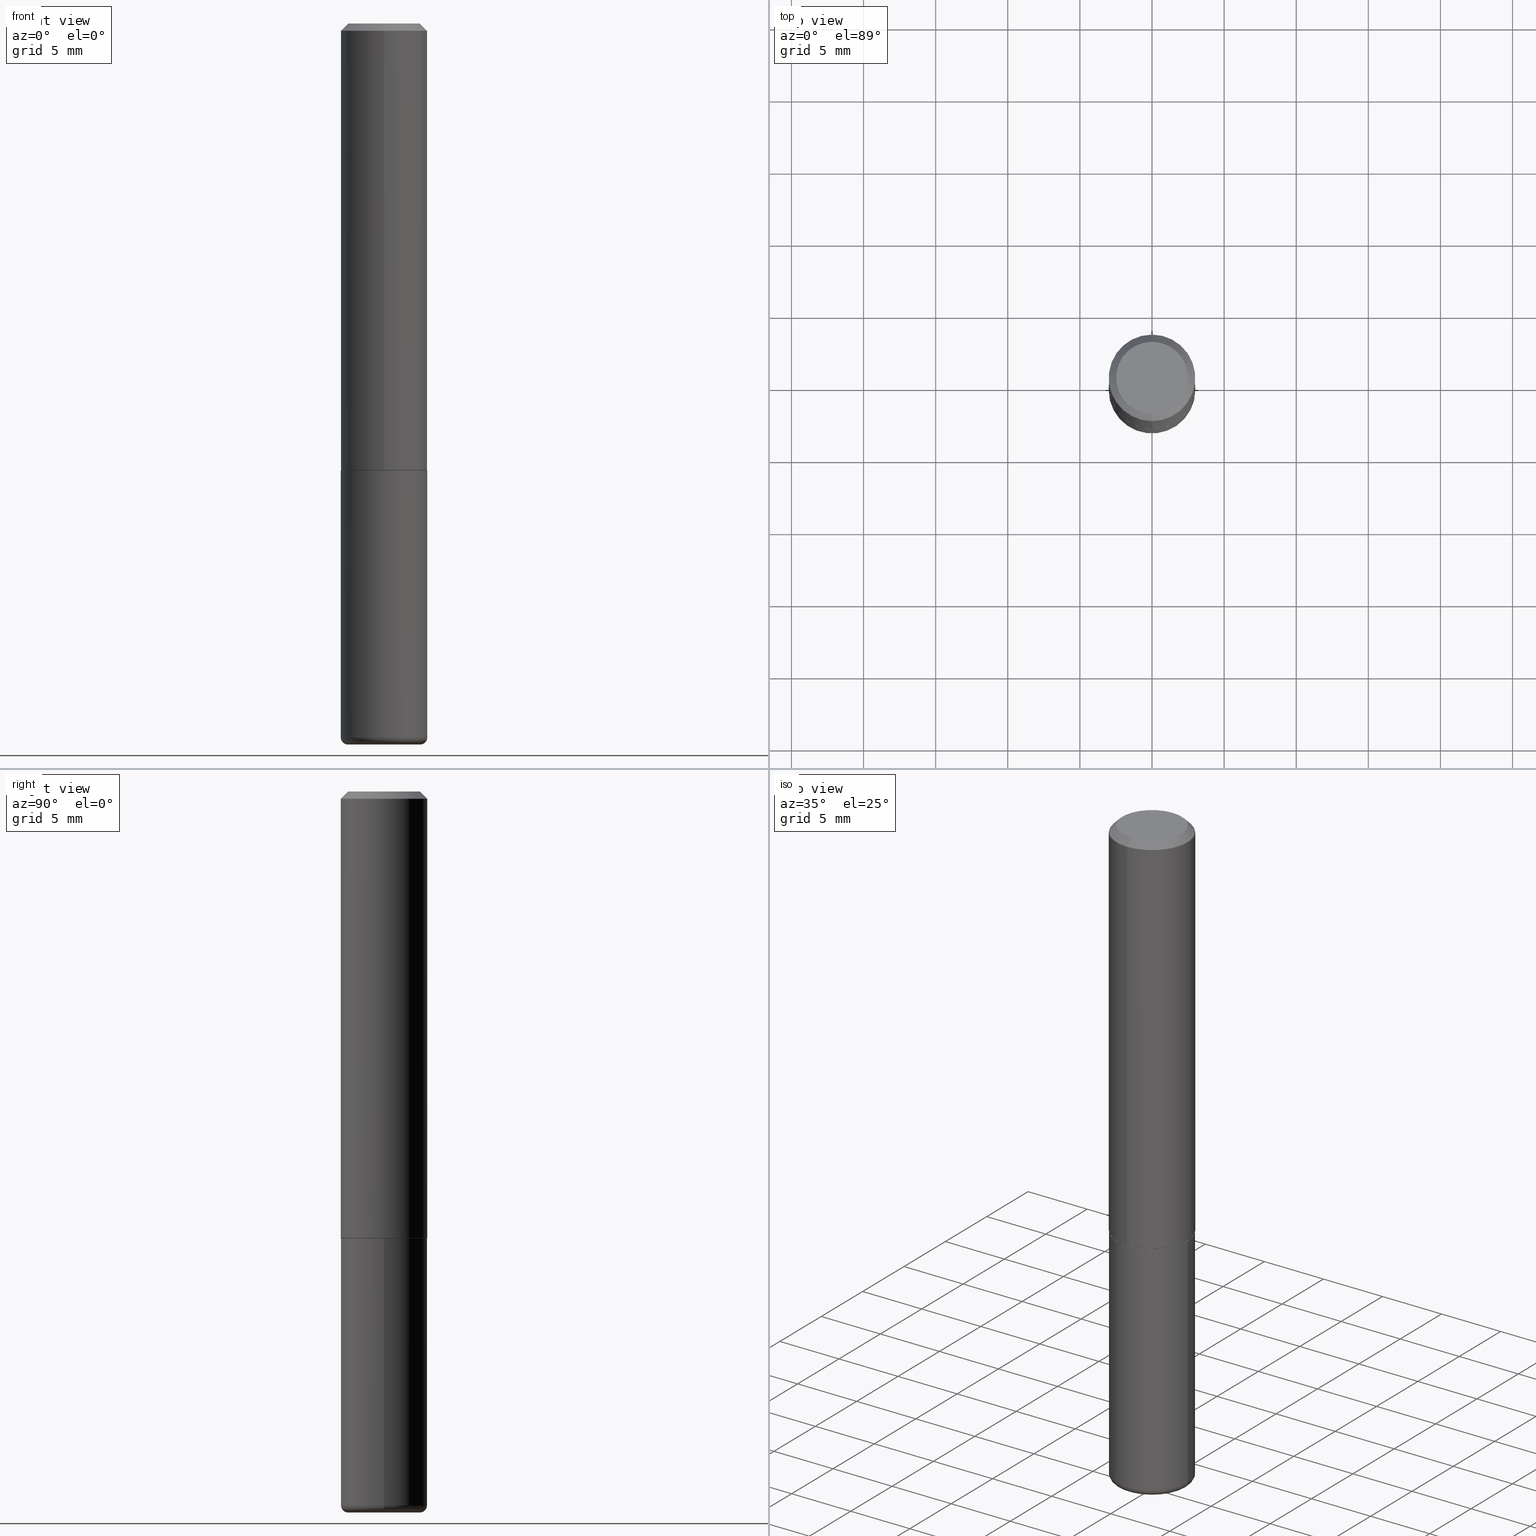
[diagram: canonical four-view strip — front | top / right | iso, engineering-drawing reading convention]
A machine part, canonical four-view strip (front | top / right | iso — engineering-drawing reading convention). The complete STEP part file that produces these views, byte-faithful:
ISO-10303-21;
HEADER;
FILE_DESCRIPTION (( 'STEP AP203' ),
    '1' );
FILE_NAME ('40010.STEP',
    '2024-03-03T20:07:41',
    ( '' ),
    ( '' ),
    'SwSTEP 2.0',
    'SolidWorks 2023',
    '' );
FILE_SCHEMA (( 'CONFIG_CONTROL_DESIGN' ));
ENDSEC;

DATA;
#1 = VERTEX_POINT ( 'NONE', #366 ) ;
#2 = DIRECTION ( 'NONE',  ( 2.444963449753266719E-29, -3.492205038016684672E-15, -1.000000000000000000 ) ) ;
#3 = APPROVAL ( #224, 'UNSPECIFIED' ) ;
#4 = DIRECTION ( 'NONE',  ( -2.444963449753266719E-29, 3.492205038016684672E-15, 1.000000000000000000 ) ) ;
#5 = DIRECTION ( 'NONE',  ( -4.937700262165474954E-15, -0.7071067811866779129, 0.7071067811864171215 ) ) ;
#6 = AXIS2_PLACEMENT_3D ( 'NONE', #348, #55, #346 ) ;
#7 = ORIENTED_EDGE ( 'NONE', *, *, #176, .T. ) ;
#8 = EDGE_CURVE ( 'NONE', #236, #1, #183, .T. ) ;
#9 = VERTEX_POINT ( 'NONE', #41 ) ;
#10 = AXIS2_PLACEMENT_3D ( 'NONE', #356, #207, #36 ) ;
#11 = DIRECTION ( 'NONE',  ( -2.444963449753266719E-29, 3.492205038016685066E-15, 1.000000000000000000 ) ) ;
#12 = CARTESIAN_POINT ( 'NONE',  ( 0.000000000000000000, 0.000000000000000000, 0.000000000000000000 ) ) ;
#13 = DIRECTION ( 'NONE',  ( 1.000000000000000000, -6.982962677686265133E-15, 0.000000000000000000 ) ) ;
#14 = CYLINDRICAL_SURFACE ( 'NONE', #220, 0.1181000000000000799 ) ;
#15 = AXIS2_PLACEMENT_3D ( 'NONE', #34, #180, #299 ) ;
#16 = AXIS2_PLACEMENT_3D ( 'NONE', #12, #48, #80 ) ;
#17 = EDGE_CURVE ( 'NONE', #413, #395, #362, .T. ) ;
#18 = DATE_AND_TIME ( #314, #417 ) ;
#19 = DIRECTION ( 'NONE',  ( -2.444963449753266719E-29, 3.492205038016684672E-15, 1.000000000000000000 ) ) ;
#20 = PRODUCT_DEFINITION ( 'UNKNOWN', '', #164, #184 ) ;
#21 = COORDINATED_UNIVERSAL_TIME_OFFSET ( 5, 0, .BEHIND. ) ;
#22 = VECTOR ( 'NONE', #117, 39.37007874015748143 ) ;
#23 = LOCAL_TIME ( 15, 7, 41.00000000000000000, #21 ) ;
#24 = DATE_AND_TIME ( #26, #23 ) ;
#25 = VERTEX_POINT ( 'NONE', #144 ) ;
#26 = CALENDAR_DATE ( 2024, 3, 3 ) ;
#27 = ADVANCED_FACE ( 'NONE', ( #37 ), #306, .T. ) ;
#28 = EDGE_LOOP ( 'NONE', ( #132, #35, #177, #241 ) ) ;
#29 = FACE_OUTER_BOUND ( 'NONE', #234, .T. ) ;
#30 = ORIENTED_EDGE ( 'NONE', *, *, #78, .F. ) ;
#31 = AXIS2_PLACEMENT_3D ( 'NONE', #96, #101, #199 ) ;
#32 = CYLINDRICAL_SURFACE ( 'NONE', #162, 0.1180999999999999966 ) ;
#33 = CARTESIAN_POINT ( 'NONE',  ( -8.177049295570318772E-16, -0.1171000000000042701, -1.220499999999999474 ) ) ;
#34 = CARTESIAN_POINT ( 'NONE',  ( 4.889926899506539218E-31, -6.984410076033377775E-17, -0.02000000000000002470 ) ) ;
#35 = ORIENTED_EDGE ( 'NONE', *, *, #17, .T. ) ;
#36 = DIRECTION ( 'NONE',  ( -6.982962677686265922E-15, -1.000000000000000000, 3.492205038016685066E-15 ) ) ;
#37 = FACE_OUTER_BOUND ( 'NONE', #142, .T. ) ;
#38 = CC_DESIGN_PERSON_AND_ORGANIZATION_ASSIGNMENT ( #288, #163, ( #164 ) ) ;
#39 = VECTOR ( 'NONE', #4, 39.37007874015748143 ) ;
#40 = CIRCLE ( 'NONE', #377, 0.1181000000000001632 ) ;
#41 = CARTESIAN_POINT ( 'NONE',  ( -8.177049295570318772E-16, -0.1171000000000042701, -1.220499999999999474 ) ) ;
#42 = EDGE_CURVE ( 'NONE', #138, #25, #256, .T. ) ;
#43 = FACE_OUTER_BOUND ( 'NONE', #206, .T. ) ;
#44 = AXIS2_PLACEMENT_3D ( 'NONE', #156, #84, #398 ) ;
#45 = DIRECTION ( 'NONE',  ( -2.444963449753266719E-29, 3.492205038016685066E-15, 1.000000000000000000 ) ) ;
#46 =( CONVERSION_BASED_UNIT ( 'INCH', #81 ) LENGTH_UNIT ( ) NAMED_UNIT ( #335 ) );
#47 = LINE ( 'NONE', #215, #186 ) ;
#48 = DIRECTION ( 'NONE',  ( -2.445468806185136597E-29, 3.491481338843145583E-15, 1.000000000000000000 ) ) ;
#49 = EDGE_CURVE ( 'NONE', #102, #379, #311, .T. ) ;
#50 = DIRECTION ( 'NONE',  ( -2.445468806185136597E-29, 3.491481338843145583E-15, 1.000000000000000000 ) ) ;
#51 = CC_DESIGN_APPROVAL ( #396, ( #20 ) ) ;
#52 = ORIENTED_EDGE ( 'NONE', *, *, #95, .F. ) ;
#53 = UNCERTAINTY_MEASURE_WITH_UNIT (LENGTH_MEASURE( 1.000000000000000082E-05 ), #46, 'distance_accuracy_value', 'NONE');
#54 = PERSON_AND_ORGANIZATION ( #178, #307 ) ;
#55 = DIRECTION ( 'NONE',  ( -2.445468806185136597E-29, 3.491481338843145583E-15, 1.000000000000000000 ) ) ;
#56 = PERSON_AND_ORGANIZATION ( #178, #307 ) ;
#57 = DATE_AND_TIME ( #349, #345 ) ;
#58 = AXIS2_PLACEMENT_3D ( 'NONE', #409, #161, #285 ) ;
#59 = APPLICATION_PROTOCOL_DEFINITION ( 'international standard', 'config_control_design', 1994, #120 ) ;
#60 = ORIENTED_EDGE ( 'NONE', *, *, #17, .F. ) ;
#61 = CARTESIAN_POINT ( 'NONE',  ( 0.000000000000000000, 0.000000000000000000, 0.000000000000000000 ) ) ;
#62 = ADVANCED_BREP_SHAPE_REPRESENTATION ( '40010', ( #141, #259, #31 ), #225 ) ;
#63 = EDGE_CURVE ( 'NONE', #138, #365, #125, .T. ) ;
#64 = CARTESIAN_POINT ( 'NONE',  ( 1.876808465074555705E-45, -2.680694461010098191E-31, -7.676222993288319083E-17 ) ) ;
#65 = AXIS2_PLACEMENT_3D ( 'NONE', #72, #332, #181 ) ;
#66 = AXIS2_PLACEMENT_3D ( 'NONE', #64, #122, #246 ) ;
#67 = ORIENTED_EDGE ( 'NONE', *, *, #159, .T. ) ;
#68 = DIRECTION ( 'NONE',  ( 6.982962677686265922E-15, 1.000000000000000000, -3.492205038016684672E-15 ) ) ;
#69 = ORIENTED_EDGE ( 'NONE', *, *, #329, .F. ) ;
#70 = DIRECTION ( 'NONE',  ( -2.445468806185136597E-29, 3.491481338843145583E-15, 1.000000000000000000 ) ) ;
#71 = EDGE_CURVE ( 'NONE', #254, #1, #47, .T. ) ;
#72 = CARTESIAN_POINT ( 'NONE',  ( 2.984694677948959472E-29, -4.261352974058059028E-15, -1.220499999999999918 ) ) ;
#73 = ORIENTED_EDGE ( 'NONE', *, *, #198, .T. ) ;
#74 = AXIS2_PLACEMENT_3D ( 'NONE', #394, #208, #109 ) ;
#75 = AXIS2_PLACEMENT_3D ( 'NONE', #326, #233, #360 ) ;
#76 = ORIENTED_EDGE ( 'NONE', *, *, #8, .T. ) ;
#77 = DIRECTION ( 'NONE',  ( -6.982962677686265922E-15, -1.000000000000000000, 3.492205038016685461E-15 ) ) ;
#78 = EDGE_CURVE ( 'NONE', #25, #379, #116, .T. ) ;
#79 = DIRECTION ( 'NONE',  ( 2.438088387897960049E-29, -3.491481338843145188E-15, -1.000000000000000000 ) ) ;
#80 = DIRECTION ( 'NONE',  ( 1.000000000000000000, -6.982962677686266711E-15, 4.876176775795936353E-29 ) ) ;
#81 = LENGTH_MEASURE_WITH_UNIT ( LENGTH_MEASURE( 0.02539999999999999897 ), #114 );
#82 = CC_DESIGN_DATE_AND_TIME_ASSIGNMENT ( #57, #286, ( #20 ) ) ;
#83 = DIRECTION ( 'NONE',  ( 2.444963449753266719E-29, -3.492205038016685066E-15, -1.000000000000000000 ) ) ;
#84 = DIRECTION ( 'NONE',  ( 2.438088387897960049E-29, -3.491481338843145188E-15, -1.000000000000000000 ) ) ;
#85 = CARTESIAN_POINT ( 'NONE',  ( -0.1180999999999999966, -4.693624932665111972E-15, -1.220499999999999918 ) ) ;
#86 = CARTESIAN_POINT ( 'NONE',  ( 2.984077890423862271E-29, -4.262236248899364203E-15, -1.220499999999999918 ) ) ;
#87 = AXIS2_PLACEMENT_3D ( 'NONE', #193, #79, #340 ) ;
#88 = APPROVAL_ROLE ( '' ) ;
#89 = AXIS2_PLACEMENT_3D ( 'NONE', #61, #331, #204 ) ;
#90 = SECURITY_CLASSIFICATION ( '', '', #169 ) ;
#91 = DIRECTION ( 'NONE',  ( -6.982962677686265922E-15, -1.000000000000000000, 3.492205038016684672E-15 ) ) ;
#92 = CALENDAR_DATE ( 2024, 3, 3 ) ;
#93 = CARTESIAN_POINT ( 'NONE',  ( 2.984077890423861710E-29, -4.262236248899363414E-15, -1.220499999999999918 ) ) ;
#94 = DIRECTION ( 'NONE',  ( -2.444963449753266719E-29, 3.492205038016685066E-15, 1.000000000000000000 ) ) ;
#95 = EDGE_CURVE ( 'NONE', #25, #110, #281, .T. ) ;
#96 = CARTESIAN_POINT ( 'NONE',  ( 0.000000000000000000, 0.000000000000000000, 0.000000000000000000 ) ) ;
#97 = CIRCLE ( 'NONE', #312, 0.1181000000000001632 ) ;
#98 = ORIENTED_EDGE ( 'NONE', *, *, #49, .T. ) ;
#99 = FACE_OUTER_BOUND ( 'NONE', #124, .T. ) ;
#100 = ADVANCED_FACE ( 'NONE', ( #401 ), #341, .T. ) ;
#101 = DIRECTION ( 'NONE',  ( 0.000000000000000000, 0.000000000000000000, 1.000000000000000000 ) ) ;
#102 = VERTEX_POINT ( 'NONE', #212 ) ;
#103 = CARTESIAN_POINT ( 'NONE',  ( 0.1180999999999999966, -8.246878922347480654E-16, 5.758764772215000440E-30 ) ) ;
#104 = ORIENTED_EDGE ( 'NONE', *, *, #159, .F. ) ;
#105 = CARTESIAN_POINT ( 'NONE',  ( 8.355982572539081628E-16, 0.1170999999999957214, -1.220500000000000362 ) ) ;
#106 = CIRCLE ( 'NONE', #235, 0.1170999999999999958 ) ;
#107 = ADVANCED_FACE ( 'NONE', ( #191 ), #192, .T. ) ;
#108 = DIRECTION ( 'NONE',  ( -2.444963449753266719E-29, 3.492205038016685066E-15, 1.000000000000000000 ) ) ;
#109 = DIRECTION ( 'NONE',  ( -1.000000000000000000, 7.105427357601014480E-15, 0.000000000000000000 ) ) ;
#110 = VERTEX_POINT ( 'NONE', #247 ) ;
#111 = AXIS2_PLACEMENT_3D ( 'NONE', #93, #94, #165 ) ;
#112 = CC_DESIGN_SECURITY_CLASSIFICATION ( #90, ( #164 ) ) ;
#113 = CARTESIAN_POINT ( 'NONE',  ( -0.1180999999999999966, 8.391509709326782957E-16, -5.809262341591043784E-30 ) ) ;
#114 =( LENGTH_UNIT ( ) NAMED_UNIT ( * ) SI_UNIT ( $, .METRE. ) );
#115 = CARTESIAN_POINT ( 'NONE',  ( 2.984077890423861710E-29, -4.262236248899363414E-15, -1.220499999999999918 ) ) ;
#116 = LINE ( 'NONE', #113, #408 ) ;
#117 = DIRECTION ( 'NONE',  ( -2.444963449753266719E-29, 3.492205038016684672E-15, 1.000000000000000000 ) ) ;
#118 = TOROIDAL_SURFACE ( 'NONE', #75, 0.09840000000000000135, 0.01969999999999989468 ) ;
#119 = DIRECTION ( 'NONE',  ( 1.000000000000000000, -6.982962677686266711E-15, 0.000000000000000000 ) ) ;
#120 = APPLICATION_CONTEXT ( 'configuration controlled 3d designs of mechanical parts and assemblies' ) ;
#121 = DIRECTION ( 'NONE',  ( -2.444963449753266719E-29, 3.492205038016685066E-15, 1.000000000000000000 ) ) ;
#122 = DIRECTION ( 'NONE',  ( -2.444963449753266719E-29, 3.492205038016685066E-15, 1.000000000000000000 ) ) ;
#123 = ADVANCED_FACE ( 'NONE', ( #43 ), #214, .F. ) ;
#124 = EDGE_LOOP ( 'NONE', ( #148, #219, #364, #327 ) ) ;
#125 = CIRCLE ( 'NONE', #359, 0.09840000000000000135 ) ;
#126 = VECTOR ( 'NONE', #5, 39.37007874015748143 ) ;
#127 = LOCAL_TIME ( 15, 7, 41.00000000000000000, #412 ) ;
#128 = FACE_OUTER_BOUND ( 'NONE', #282, .T. ) ;
#129 = EDGE_CURVE ( 'NONE', #236, #322, #40, .T. ) ;
#130 = FACE_OUTER_BOUND ( 'NONE', #264, .T. ) ;
#131 = CALENDAR_DATE ( 2024, 3, 3 ) ;
#132 = ORIENTED_EDGE ( 'NONE', *, *, #352, .F. ) ;
#133 = EDGE_CURVE ( 'NONE', #344, #236, #190, .T. ) ;
#134 = PERSON_AND_ORGANIZATION ( #178, #307 ) ;
#135 = AXIS2_PLACEMENT_3D ( 'NONE', #400, #50, #13 ) ;
#136 = EDGE_LOOP ( 'NONE', ( #201, #76, #229, #358 ) ) ;
#137 = CARTESIAN_POINT ( 'NONE',  ( 0.09840000000000000135, -7.560104542997059178E-15, -1.968499999999999694 ) ) ;
#138 = VERTEX_POINT ( 'NONE', #310 ) ;
#139 = FACE_OUTER_BOUND ( 'NONE', #303, .T. ) ;
#140 = PRODUCT_RELATED_PRODUCT_CATEGORY ( 'detail', '', ( #297 ) ) ;
#141 = MANIFOLD_SOLID_BREP ( 'Body-Move/Copy2[1]', #197 ) ;
#142 = EDGE_LOOP ( 'NONE', ( #60, #397, #315, #73 ) ) ;
#143 = CARTESIAN_POINT ( 'NONE',  ( 4.889926899506539218E-31, -6.984410076033377775E-17, -0.02000000000000002470 ) ) ;
#144 = CARTESIAN_POINT ( 'NONE',  ( -0.1180999999999999411, -5.965047862204843903E-15, -1.948800000000000088 ) ) ;
#145 = CLOSED_SHELL ( 'NONE', ( #300, #150, #107, #27, #277, #239, #210, #304 ) ) ;
#146 = VECTOR ( 'NONE', #323, 39.37007874015748143 ) ;
#147 = ORIENTED_EDGE ( 'NONE', *, *, #133, .F. ) ;
#148 = ORIENTED_EDGE ( 'NONE', *, *, #8, .F. ) ;
#149 = EDGE_LOOP ( 'NONE', ( #350, #390 ) ) ;
#150 = ADVANCED_FACE ( 'NONE', ( #278 ), #14, .T. ) ;
#151 = DIRECTION ( 'NONE',  ( -6.982962677686265922E-15, -1.000000000000000000, 3.499378301021686484E-15 ) ) ;
#152 = CIRCLE ( 'NONE', #268, 0.1180999999999999966 ) ;
#153 = DIRECTION ( 'NONE',  ( 1.000000000000000000, -6.982962677686261977E-15, 0.000000000000000000 ) ) ;
#154 = DIRECTION ( 'NONE',  ( -2.445468806185136597E-29, 3.491481338843145583E-15, 1.000000000000000000 ) ) ;
#155 = CARTESIAN_POINT ( 'NONE',  ( 2.981632926974109252E-29, -4.258744043861347437E-15, -1.219500000000000028 ) ) ;
#156 = CARTESIAN_POINT ( 'NONE',  ( 8.630153190040666102E-29, -1.407896894041099365E-15, -1.968500000000000139 ) ) ;
#157 = APPROVAL_PERSON_ORGANIZATION ( #226, #396, #88 ) ;
#158 = SHAPE_DEFINITION_REPRESENTATION ( #380, #62 ) ;
#159 = EDGE_CURVE ( 'NONE', #9, #344, #106, .T. ) ;
#160 =( NAMED_UNIT ( * ) SI_UNIT ( $, .STERADIAN. ) SOLID_ANGLE_UNIT ( ) );
#161 = DIRECTION ( 'NONE',  ( -2.445468806185136597E-29, 3.491481338843145583E-15, 1.000000000000000000 ) ) ;
#162 = AXIS2_PLACEMENT_3D ( 'NONE', #175, #266, #260 ) ;
#163 = PERSON_AND_ORGANIZATION_ROLE ( 'creator' ) ;
#164 = PRODUCT_DEFINITION_FORMATION_WITH_SPECIFIED_SOURCE ( 'ANY', '', #297, .NOT_KNOWN. ) ;
#165 = DIRECTION ( 'NONE',  ( -6.982962677686265922E-15, -1.000000000000000000, 3.499378301021686484E-15 ) ) ;
#166 = APPLICATION_PROTOCOL_DEFINITION ( 'international standard', 'config_control_design', 1994, #240 ) ;
#167 = ADVANCED_FACE ( 'NONE', ( #211 ), #272, .T. ) ;
#168 = ORIENTED_EDGE ( 'NONE', *, *, #49, .F. ) ;
#169 = SECURITY_CLASSIFICATION_LEVEL ( 'unclassified' ) ;
#170 = ORIENTED_EDGE ( 'NONE', *, *, #182, .T. ) ;
#171 = EDGE_CURVE ( 'NONE', #322, #236, #97, .T. ) ;
#172 = CARTESIAN_POINT ( 'NONE',  ( 2.984077890423861710E-29, -4.262236248899363414E-15, -1.220499999999999918 ) ) ;
#173 = CIRCLE ( 'NONE', #66, 0.09810000000000008991 ) ;
#174 = ORIENTED_EDGE ( 'NONE', *, *, #188, .T. ) ;
#175 = CARTESIAN_POINT ( 'NONE',  ( 0.000000000000000000, 0.000000000000000000, 0.000000000000000000 ) ) ;
#176 = EDGE_CURVE ( 'NONE', #365, #110, #257, .T. ) ;
#177 = ORIENTED_EDGE ( 'NONE', *, *, #321, .T. ) ;
#178 = PERSON ( 'UNSPECIFIED', 'UNSPECIFIED', 'UNSPECIFIED', ('UNSPECIFIED'), ('UNSPECIFIED'), ('UNSPECIFIED') ) ;
#179 = FACE_OUTER_BOUND ( 'NONE', #333, .T. ) ;
#180 = DIRECTION ( 'NONE',  ( 2.444963449753266719E-29, -3.492205038016685066E-15, -1.000000000000000000 ) ) ;
#181 = DIRECTION ( 'NONE',  ( 1.000000000000000000, -6.982962677686265133E-15, 0.000000000000000000 ) ) ;
#182 = EDGE_CURVE ( 'NONE', #365, #138, #248, .T. ) ;
#183 = LINE ( 'NONE', #336, #39 ) ;
#184 = DESIGN_CONTEXT ( 'detailed design', #120, 'design' ) ;
#185 = CARTESIAN_POINT ( 'NONE',  ( 4.889926899506539218E-31, -6.984410076033377775E-17, -0.02000000000000002470 ) ) ;
#186 = VECTOR ( 'NONE', #337, 39.37007874015748143 ) ;
#187 = AXIS2_PLACEMENT_3D ( 'NONE', #270, #245, #274 ) ;
#188 = EDGE_CURVE ( 'NONE', #344, #9, #334, .T. ) ;
#189 = DIRECTION ( 'NONE',  ( -6.982962677686265922E-15, -1.000000000000000000, 3.469747663417772269E-15 ) ) ;
#190 = LINE ( 'NONE', #244, #367 ) ;
#191 = FACE_OUTER_BOUND ( 'NONE', #28, .T. ) ;
#192 = CONICAL_SURFACE ( 'NONE', #302, 0.1180999999999999966, 0.7853981633974472798 ) ;
#193 = CARTESIAN_POINT ( 'NONE',  ( 2.984694677948959472E-29, -4.261352974058059028E-15, -1.220499999999999918 ) ) ;
#194 = DATE_AND_TIME ( #131, #271 ) ;
#195 = ORIENTED_EDGE ( 'NONE', *, *, #376, .T. ) ;
#196 = APPROVAL_DATE_TIME ( #24, #3 ) ;
#197 = CLOSED_SHELL ( 'NONE', ( #291, #231, #123, #100, #368, #167 ) ) ;
#198 = EDGE_CURVE ( 'NONE', #1, #395, #325, .T. ) ;
#199 = DIRECTION ( 'NONE',  ( 1.000000000000000000, 0.000000000000000000, 0.000000000000000000 ) ) ;
#200 = APPROVAL_DATE_TIME ( #222, #396 ) ;
#201 = ORIENTED_EDGE ( 'NONE', *, *, #171, .T. ) ;
#202 = LINE ( 'NONE', #103, #146 ) ;
#203 = CIRCLE ( 'NONE', #10, 0.09810000000000008991 ) ;
#204 = DIRECTION ( 'NONE',  ( -6.982962677686265922E-15, -1.000000000000000000, 3.492205038016685461E-15 ) ) ;
#205 = CARTESIAN_POINT ( 'NONE',  ( -8.102248135368172434E-16, -0.1181000000000000660, -0.01999999999999961184 ) ) ;
#206 = EDGE_LOOP ( 'NONE', ( #98, #232 ) ) ;
#207 = DIRECTION ( 'NONE',  ( -2.444963449753266719E-29, 3.492205038016685066E-15, 1.000000000000000000 ) ) ;
#208 = DIRECTION ( 'NONE',  ( 7.105427357601001859E-15, 1.000000000000000000, -3.491481338843145583E-15 ) ) ;
#209 = ORIENTED_EDGE ( 'NONE', *, *, #171, .F. ) ;
#210 = ADVANCED_FACE ( 'NONE', ( #130 ), #378, .F. ) ;
#211 = FACE_OUTER_BOUND ( 'NONE', #149, .T. ) ;
#212 = CARTESIAN_POINT ( 'NONE',  ( 0.1180999999999999966, -5.086040866292807290E-15, -1.220499999999999918 ) ) ;
#213 = CONICAL_SURFACE ( 'NONE', #292, 0.1170999999999999958, 0.7853981633976361287 ) ;
#214 = PLANE ( 'NONE',  #87 ) ;
#215 = CARTESIAN_POINT ( 'NONE',  ( 8.246878922347484598E-16, 0.1180999999999999273, -0.02000000000000044104 ) ) ;
#216 = CARTESIAN_POINT ( 'NONE',  ( -8.102248135368172434E-16, -0.1181000000000000660, -0.01999999999999961184 ) ) ;
#217 = DIRECTION ( 'NONE',  ( -2.444963449753266719E-29, 3.492205038016685066E-15, 1.000000000000000000 ) ) ;
#218 = CC_DESIGN_PERSON_AND_ORGANIZATION_ASSIGNMENT ( #385, #410, ( #164 ) ) ;
#219 = ORIENTED_EDGE ( 'NONE', *, *, #129, .T. ) ;
#220 = AXIS2_PLACEMENT_3D ( 'NONE', #275, #121, #77 ) ;
#221 = PERSON_AND_ORGANIZATION_ROLE ( 'creator' ) ;
#222 = DATE_AND_TIME ( #92, #127 ) ;
#223 = EDGE_CURVE ( 'NONE', #379, #102, #416, .T. ) ;
#224 = APPROVAL_STATUS ( 'not_yet_approved' ) ;
#225 =( GEOMETRIC_REPRESENTATION_CONTEXT ( 3 ) GLOBAL_UNCERTAINTY_ASSIGNED_CONTEXT ( ( #53 ) ) GLOBAL_UNIT_ASSIGNED_CONTEXT ( ( #46, #381, #160 ) ) REPRESENTATION_CONTEXT ( 'NONE', 'WORKASPACE' ) );
#226 = PERSON_AND_ORGANIZATION ( #178, #307 ) ;
#227 = CYLINDRICAL_SURFACE ( 'NONE', #89, 0.1181000000000000799 ) ;
#228 = APPROVAL_STATUS ( 'not_yet_approved' ) ;
#229 = ORIENTED_EDGE ( 'NONE', *, *, #321, .F. ) ;
#230 = CARTESIAN_POINT ( 'NONE',  ( 4.765729609493594537E-29, -6.804198833137522100E-15, -1.948800000000000088 ) ) ;
#231 = ADVANCED_FACE ( 'NONE', ( #414 ), #243, .T. ) ;
#232 = ORIENTED_EDGE ( 'NONE', *, *, #223, .T. ) ;
#233 = DIRECTION ( 'NONE',  ( -2.445468806185136597E-29, 3.491481338843145583E-15, 1.000000000000000000 ) ) ;
#234 = EDGE_LOOP ( 'NONE', ( #269, #238, #7, #52 ) ) ;
#235 = AXIS2_PLACEMENT_3D ( 'NONE', #402, #217, #372 ) ;
#236 = VERTEX_POINT ( 'NONE', #384 ) ;
#237 = DIRECTION ( 'NONE',  ( -6.982962677686265922E-15, -1.000000000000000000, 3.505890868245046092E-15 ) ) ;
#238 = ORIENTED_EDGE ( 'NONE', *, *, #63, .T. ) ;
#239 = ADVANCED_FACE ( 'NONE', ( #128 ), #283, .T. ) ;
#240 = APPLICATION_CONTEXT ( 'configuration controlled 3d designs of mechanical parts and assemblies' ) ;
#241 = ORIENTED_EDGE ( 'NONE', *, *, #71, .F. ) ;
#242 = ORIENTED_EDGE ( 'NONE', *, *, #133, .T. ) ;
#243 = TOROIDAL_SURFACE ( 'NONE', #58, 0.09840000000000000135, 0.01969999999999989468 ) ;
#244 = CARTESIAN_POINT ( 'NONE',  ( 8.320455435751069684E-16, 0.1170999999999957214, -1.220500000000000362 ) ) ;
#245 = DIRECTION ( 'NONE',  ( -2.444963449753266719E-29, 3.492205038016685066E-15, 1.000000000000000000 ) ) ;
#246 = DIRECTION ( 'NONE',  ( -6.982962677686265922E-15, -1.000000000000000000, 3.492205038016685066E-15 ) ) ;
#247 = CARTESIAN_POINT ( 'NONE',  ( 0.1180999999999999411, -7.628886725372270363E-15, -1.948800000000000088 ) ) ;
#248 = CIRCLE ( 'NONE', #339, 0.09840000000000000135 ) ;
#249 = CC_DESIGN_DATE_AND_TIME_ASSIGNMENT ( #194, #407, ( #90 ) ) ;
#250 = DIRECTION ( 'NONE',  ( -6.982962677686266711E-15, -1.000000000000000000, 3.491481338843145583E-15 ) ) ;
#251 = AXIS2_PLACEMENT_3D ( 'NONE', #308, #250, #119 ) ;
#252 = APPROVAL_STATUS ( 'not_yet_approved' ) ;
#253 = CC_DESIGN_PERSON_AND_ORGANIZATION_ASSIGNMENT ( #319, #289, ( #297 ) ) ;
#254 = VERTEX_POINT ( 'NONE', #382 ) ;
#255 = APPROVAL_ROLE ( '' ) ;
#256 = CIRCLE ( 'NONE', #74, 0.01969999999999989468 ) ;
#257 = CIRCLE ( 'NONE', #251, 0.01969999999999989468 ) ;
#258 = APPROVAL_ROLE ( '' ) ;
#259 = MANIFOLD_SOLID_BREP ( 'Body-Move/Copy2[2]', #145 ) ;
#260 = DIRECTION ( 'NONE',  ( 1.000000000000000000, -6.982962677686266711E-15, 4.876176775795936353E-29 ) ) ;
#261 = ORIENTED_EDGE ( 'NONE', *, *, #188, .F. ) ;
#262 = ORIENTED_EDGE ( 'NONE', *, *, #354, .T. ) ;
#263 = DIRECTION ( 'NONE',  ( -2.444963449753266719E-29, 3.492205038016685066E-15, 1.000000000000000000 ) ) ;
#264 = EDGE_LOOP ( 'NONE', ( #104, #261 ) ) ;
#265 = EDGE_LOOP ( 'NONE', ( #170, #287, #69, #324 ) ) ;
#266 = DIRECTION ( 'NONE',  ( -2.445468806185136597E-29, 3.491481338843145583E-15, 1.000000000000000000 ) ) ;
#267 = ORIENTED_EDGE ( 'NONE', *, *, #129, .F. ) ;
#268 = AXIS2_PLACEMENT_3D ( 'NONE', #230, #70, #389 ) ;
#269 = ORIENTED_EDGE ( 'NONE', *, *, #42, .F. ) ;
#270 = CARTESIAN_POINT ( 'NONE',  ( 4.889926899506539218E-31, -6.984410076033377775E-17, -0.02000000000000002470 ) ) ;
#271 = LOCAL_TIME ( 15, 7, 41.00000000000000000, #317 ) ;
#272 = PLANE ( 'NONE',  #44 ) ;
#273 = CARTESIAN_POINT ( 'NONE',  ( -7.416198335591025037E-16, -0.09810000000000008991, 2.658230842965539314E-16 ) ) ;
#274 = DIRECTION ( 'NONE',  ( -6.982962677686265922E-15, -1.000000000000000000, 3.505890868245046092E-15 ) ) ;
#275 = CARTESIAN_POINT ( 'NONE',  ( 0.000000000000000000, 0.000000000000000000, 0.000000000000000000 ) ) ;
#276 = AXIS2_PLACEMENT_3D ( 'NONE', #86, #19, #91 ) ;
#277 = ADVANCED_FACE ( 'NONE', ( #99 ), #227, .T. ) ;
#278 = FACE_OUTER_BOUND ( 'NONE', #136, .T. ) ;
#279 = ORIENTED_EDGE ( 'NONE', *, *, #329, .T. ) ;
#280 = PERSON_AND_ORGANIZATION_ROLE ( 'classification_officer' ) ;
#281 = CIRCLE ( 'NONE', #135, 0.1180999999999999966 ) ;
#282 = EDGE_LOOP ( 'NONE', ( #147, #174, #405, #267 ) ) ;
#283 = CONICAL_SURFACE ( 'NONE', #111, 0.1170999999999999958, 0.7853981633976361287 ) ;
#284 = CC_DESIGN_APPROVAL ( #3, ( #164 ) ) ;
#285 = DIRECTION ( 'NONE',  ( 1.000000000000000000, -6.982962677686270655E-15, 4.883557194083114583E-29 ) ) ;
#286 = DATE_TIME_ROLE ( 'creation_date' ) ;
#287 = ORIENTED_EDGE ( 'NONE', *, *, #42, .T. ) ;
#288 = PERSON_AND_ORGANIZATION ( #178, #307 ) ;
#289 = PERSON_AND_ORGANIZATION_ROLE ( 'design_owner' ) ;
#290 = ORIENTED_EDGE ( 'NONE', *, *, #223, .F. ) ;
#291 = ADVANCED_FACE ( 'NONE', ( #179 ), #32, .T. ) ;
#292 = AXIS2_PLACEMENT_3D ( 'NONE', #172, #108, #328 ) ;
#293 = CC_DESIGN_APPROVAL ( #387, ( #90 ) ) ;
#294 = PLANE ( 'NONE',  #383 ) ;
#295 = ORIENTED_EDGE ( 'NONE', *, *, #78, .T. ) ;
#296 = ORIENTED_EDGE ( 'NONE', *, *, #352, .T. ) ;
#297 = PRODUCT ( '40010', '40010', '', ( #415 ) ) ;
#298 = LINE ( 'NONE', #33, #126 ) ;
#299 = DIRECTION ( 'NONE',  ( 6.982962677686265922E-15, 1.000000000000000000, -3.505890868245046092E-15 ) ) ;
#300 = ADVANCED_FACE ( 'NONE', ( #139 ), #213, .T. ) ;
#301 = ORIENTED_EDGE ( 'NONE', *, *, #316, .F. ) ;
#302 = AXIS2_PLACEMENT_3D ( 'NONE', #185, #83, #305 ) ;
#303 = EDGE_LOOP ( 'NONE', ( #67, #242, #209, #301 ) ) ;
#304 = ADVANCED_FACE ( 'NONE', ( #392 ), #294, .F. ) ;
#305 = DIRECTION ( 'NONE',  ( 6.982962677686265922E-15, 1.000000000000000000, -3.505890868245046092E-15 ) ) ;
#306 = CONICAL_SURFACE ( 'NONE', #15, 0.1180999999999999966, 0.7853981633974472798 ) ;
#307 = ORGANIZATION ( 'UNSPECIFIED', 'UNSPECIFIED', '' ) ;
#308 = CARTESIAN_POINT ( 'NONE',  ( 0.09840000000000000135, -7.491322360621851148E-15, -1.948800000000000088 ) ) ;
#309 = CARTESIAN_POINT ( 'NONE',  ( 4.813905344975440714E-29, -6.872981015512730918E-15, -1.968499999999999694 ) ) ;
#310 = CARTESIAN_POINT ( 'NONE',  ( -0.09840000000000000135, -6.069427412864818755E-15, -1.968499999999999694 ) ) ;
#311 = CIRCLE ( 'NONE', #65, 0.1180999999999999966 ) ;
#312 = AXIS2_PLACEMENT_3D ( 'NONE', #313, #11, #404 ) ;
#313 = CARTESIAN_POINT ( 'NONE',  ( 2.981632926974109252E-29, -4.258744043861347437E-15, -1.219500000000000028 ) ) ;
#314 = CALENDAR_DATE ( 2024, 3, 3 ) ;
#315 = ORIENTED_EDGE ( 'NONE', *, *, #71, .T. ) ;
#316 = EDGE_CURVE ( 'NONE', #9, #322, #298, .T. ) ;
#317 = COORDINATED_UNIVERSAL_TIME_OFFSET ( 5, 0, .BEHIND. ) ;
#318 = APPROVAL_DATE_TIME ( #18, #387 ) ;
#319 = PERSON_AND_ORGANIZATION ( #178, #307 ) ;
#320 = PERSON_AND_ORGANIZATION ( #178, #307 ) ;
#321 = EDGE_CURVE ( 'NONE', #395, #1, #391, .T. ) ;
#322 = VERTEX_POINT ( 'NONE', #363 ) ;
#323 = DIRECTION ( 'NONE',  ( -2.445468806185136877E-29, 3.491481338843145188E-15, 1.000000000000000000 ) ) ;
#324 = ORIENTED_EDGE ( 'NONE', *, *, #176, .F. ) ;
#325 = CIRCLE ( 'NONE', #187, 0.1180999999999999966 ) ;
#326 = CARTESIAN_POINT ( 'NONE',  ( 4.765729609493594537E-29, -6.804198833137522100E-15, -1.948800000000000088 ) ) ;
#327 = ORIENTED_EDGE ( 'NONE', *, *, #198, .F. ) ;
#328 = DIRECTION ( 'NONE',  ( -6.982962677686265922E-15, -1.000000000000000000, 3.499378301021686484E-15 ) ) ;
#329 = EDGE_CURVE ( 'NONE', #110, #25, #152, .T. ) ;
#330 = DIRECTION ( 'NONE',  ( -4.851104656540958753E-15, -0.7071067811865492381, -0.7071067811865457964 ) ) ;
#331 = DIRECTION ( 'NONE',  ( -2.444963449753266719E-29, 3.492205038016685066E-15, 1.000000000000000000 ) ) ;
#332 = DIRECTION ( 'NONE',  ( -2.445468806185136597E-29, 3.491481338843145583E-15, 1.000000000000000000 ) ) ;
#333 = EDGE_LOOP ( 'NONE', ( #279, #295, #168, #388 ) ) ;
#334 = CIRCLE ( 'NONE', #343, 0.1170999999999999958 ) ;
#335 = DIMENSIONAL_EXPONENTS ( 1.000000000000000000, 0.000000000000000000, 0.000000000000000000, 0.000000000000000000, 0.000000000000000000, 0.000000000000000000, 0.000000000000000000 ) ;
#336 = CARTESIAN_POINT ( 'NONE',  ( 8.391509709326787887E-16, 0.1181000000000000799, -4.124294149897708260E-16 ) ) ;
#337 = DIRECTION ( 'NONE',  ( 4.937700262164542520E-15, 0.7071067811865443531, -0.7071067811865506814 ) ) ;
#338 = DIRECTION ( 'NONE',  ( -2.445468806185136597E-29, 3.491481338843145583E-15, 1.000000000000000000 ) ) ;
#339 = AXIS2_PLACEMENT_3D ( 'NONE', #375, #154, #153 ) ;
#340 = DIRECTION ( 'NONE',  ( -1.000000000000000000, 6.982962677686265922E-15, -4.876176775795935793E-29 ) ) ;
#341 = CYLINDRICAL_SURFACE ( 'NONE', #16, 0.1180999999999999966 ) ;
#342 = DIRECTION ( 'NONE',  ( -2.445468806185136877E-29, 3.491481338843145188E-15, 1.000000000000000000 ) ) ;
#343 = AXIS2_PLACEMENT_3D ( 'NONE', #115, #373, #151 ) ;
#344 = VERTEX_POINT ( 'NONE', #105 ) ;
#345 = LOCAL_TIME ( 15, 7, 41.00000000000000000, #347 ) ;
#346 = DIRECTION ( 'NONE',  ( 1.000000000000000000, -6.982962677686265133E-15, 0.000000000000000000 ) ) ;
#347 = COORDINATED_UNIVERSAL_TIME_OFFSET ( 5, 0, .BEHIND. ) ;
#348 = CARTESIAN_POINT ( 'NONE',  ( 2.984694677948959472E-29, -4.261352974058059028E-15, -1.220499999999999918 ) ) ;
#349 = CALENDAR_DATE ( 2024, 3, 3 ) ;
#350 = ORIENTED_EDGE ( 'NONE', *, *, #182, .F. ) ;
#351 = VECTOR ( 'NONE', #330, 39.37007874015748143 ) ;
#352 = EDGE_CURVE ( 'NONE', #413, #254, #203, .T. ) ;
#353 = COORDINATED_UNIVERSAL_TIME_OFFSET ( 5, 0, .BEHIND. ) ;
#354 = EDGE_CURVE ( 'NONE', #110, #102, #202, .T. ) ;
#355 = EDGE_LOOP ( 'NONE', ( #195, #296 ) ) ;
#356 = CARTESIAN_POINT ( 'NONE',  ( 1.876808465074555705E-45, -2.680694461010098191E-31, -7.676222993288319083E-17 ) ) ;
#357 = EDGE_LOOP ( 'NONE', ( #30, #386, #262, #290 ) ) ;
#358 = ORIENTED_EDGE ( 'NONE', *, *, #406, .F. ) ;
#359 = AXIS2_PLACEMENT_3D ( 'NONE', #309, #338, #370 ) ;
#360 = DIRECTION ( 'NONE',  ( 1.000000000000000000, -6.982962677686270655E-15, 4.883557194083114583E-29 ) ) ;
#361 = APPROVAL_PERSON_ORGANIZATION ( #134, #387, #255 ) ;
#362 = LINE ( 'NONE', #205, #351 ) ;
#363 = CARTESIAN_POINT ( 'NONE',  ( -8.246878922347193706E-16, -0.1181000000000044237, -1.219499999999999584 ) ) ;
#364 = ORIENTED_EDGE ( 'NONE', *, *, #406, .T. ) ;
#365 = VERTEX_POINT ( 'NONE', #137 ) ;
#366 = CARTESIAN_POINT ( 'NONE',  ( 8.246878922347484598E-16, 0.1180999999999999273, -0.02000000000000044104 ) ) ;
#367 = VECTOR ( 'NONE', #369, 39.37007874015748143 ) ;
#368 = ADVANCED_FACE ( 'NONE', ( #29 ), #118, .T. ) ;
#369 = DIRECTION ( 'NONE',  ( 5.024295867789005867E-15, 0.7071067811866827979, 0.7071067811864122366 ) ) ;
#370 = DIRECTION ( 'NONE',  ( 1.000000000000000000, -6.982962677686261977E-15, 0.000000000000000000 ) ) ;
#371 = CC_DESIGN_PERSON_AND_ORGANIZATION_ASSIGNMENT ( #320, #221, ( #20 ) ) ;
#372 = DIRECTION ( 'NONE',  ( -6.982962677686265922E-15, -1.000000000000000000, 3.499378301021686484E-15 ) ) ;
#373 = DIRECTION ( 'NONE',  ( -2.444963449753266719E-29, 3.492205038016685066E-15, 1.000000000000000000 ) ) ;
#374 = CARTESIAN_POINT ( 'NONE',  ( -8.246878922347485584E-16, -0.1181000000000000799, 4.124294149897708260E-16 ) ) ;
#375 = CARTESIAN_POINT ( 'NONE',  ( 4.813905344975440714E-29, -6.872981015512730918E-15, -1.968499999999999694 ) ) ;
#376 = EDGE_CURVE ( 'NONE', #254, #413, #173, .T. ) ;
#377 = AXIS2_PLACEMENT_3D ( 'NONE', #155, #45, #189 ) ;
#378 = PLANE ( 'NONE',  #276 ) ;
#379 = VERTEX_POINT ( 'NONE', #85 ) ;
#380 = PRODUCT_DEFINITION_SHAPE ( 'NONE', 'NONE',  #20 ) ;
#381 =( NAMED_UNIT ( * ) PLANE_ANGLE_UNIT ( ) SI_UNIT ( $, .RADIAN. ) );
#382 = CARTESIAN_POINT ( 'NONE',  ( 7.548582654578859505E-16, 0.09810000000000008991, -4.193475441623202884E-16 ) ) ;
#383 = AXIS2_PLACEMENT_3D ( 'NONE', #418, #2, #68 ) ;
#384 = CARTESIAN_POINT ( 'NONE',  ( 8.391509709326943687E-16, 0.1180999999999959166, -1.219500000000000473 ) ) ;
#385 = PERSON_AND_ORGANIZATION ( #178, #307 ) ;
#386 = ORIENTED_EDGE ( 'NONE', *, *, #95, .T. ) ;
#387 = APPROVAL ( #228, 'UNSPECIFIED' ) ;
#388 = ORIENTED_EDGE ( 'NONE', *, *, #354, .F. ) ;
#389 = DIRECTION ( 'NONE',  ( 1.000000000000000000, -6.982962677686265133E-15, 0.000000000000000000 ) ) ;
#390 = ORIENTED_EDGE ( 'NONE', *, *, #63, .F. ) ;
#391 = CIRCLE ( 'NONE', #403, 0.1180999999999999966 ) ;
#392 = FACE_OUTER_BOUND ( 'NONE', #355, .T. ) ;
#393 = APPROVAL_PERSON_ORGANIZATION ( #54, #3, #258 ) ;
#394 = CARTESIAN_POINT ( 'NONE',  ( -0.09840000000000000135, -6.105024781149583212E-15, -1.948800000000000088 ) ) ;
#395 = VERTEX_POINT ( 'NONE', #216 ) ;
#396 = APPROVAL ( #252, 'UNSPECIFIED' ) ;
#397 = ORIENTED_EDGE ( 'NONE', *, *, #376, .F. ) ;
#398 = DIRECTION ( 'NONE',  ( -1.000000000000000000, 6.982962677686265922E-15, -4.876176775795935793E-29 ) ) ;
#399 = LINE ( 'NONE', #374, #22 ) ;
#400 = CARTESIAN_POINT ( 'NONE',  ( 4.765729609493594537E-29, -6.804198833137522100E-15, -1.948800000000000088 ) ) ;
#401 = FACE_OUTER_BOUND ( 'NONE', #357, .T. ) ;
#402 = CARTESIAN_POINT ( 'NONE',  ( 2.984077890423861710E-29, -4.262236248899363414E-15, -1.220499999999999918 ) ) ;
#403 = AXIS2_PLACEMENT_3D ( 'NONE', #143, #263, #237 ) ;
#404 = DIRECTION ( 'NONE',  ( -6.982962677686265922E-15, -1.000000000000000000, 3.469747663417772269E-15 ) ) ;
#405 = ORIENTED_EDGE ( 'NONE', *, *, #316, .T. ) ;
#406 = EDGE_CURVE ( 'NONE', #322, #395, #399, .T. ) ;
#407 = DATE_TIME_ROLE ( 'classification_date' ) ;
#408 = VECTOR ( 'NONE', #342, 39.37007874015748143 ) ;
#409 = CARTESIAN_POINT ( 'NONE',  ( 4.765729609493594537E-29, -6.804198833137522100E-15, -1.948800000000000088 ) ) ;
#410 = PERSON_AND_ORGANIZATION_ROLE ( 'design_supplier' ) ;
#411 = CC_DESIGN_PERSON_AND_ORGANIZATION_ASSIGNMENT ( #56, #280, ( #90 ) ) ;
#412 = COORDINATED_UNIVERSAL_TIME_OFFSET ( 5, 0, .BEHIND. ) ;
#413 = VERTEX_POINT ( 'NONE', #273 ) ;
#414 = FACE_OUTER_BOUND ( 'NONE', #265, .T. ) ;
#415 = MECHANICAL_CONTEXT ( 'NONE', #240, 'mechanical' ) ;
#416 = CIRCLE ( 'NONE', #6, 0.1180999999999999966 ) ;
#417 = LOCAL_TIME ( 15, 7, 41.00000000000000000, #353 ) ;
#418 = CARTESIAN_POINT ( 'NONE',  ( 6.850286386810233425E-16, 0.09810000000000008991, -3.809664291958786868E-16 ) ) ;
ENDSEC;
END-ISO-10303-21;
